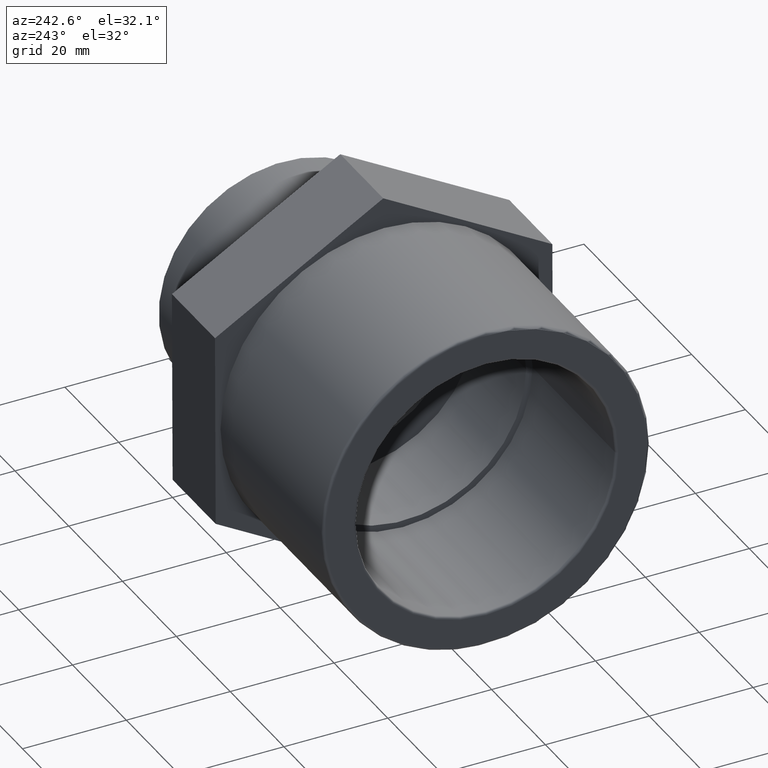
[diagram: clean part render]
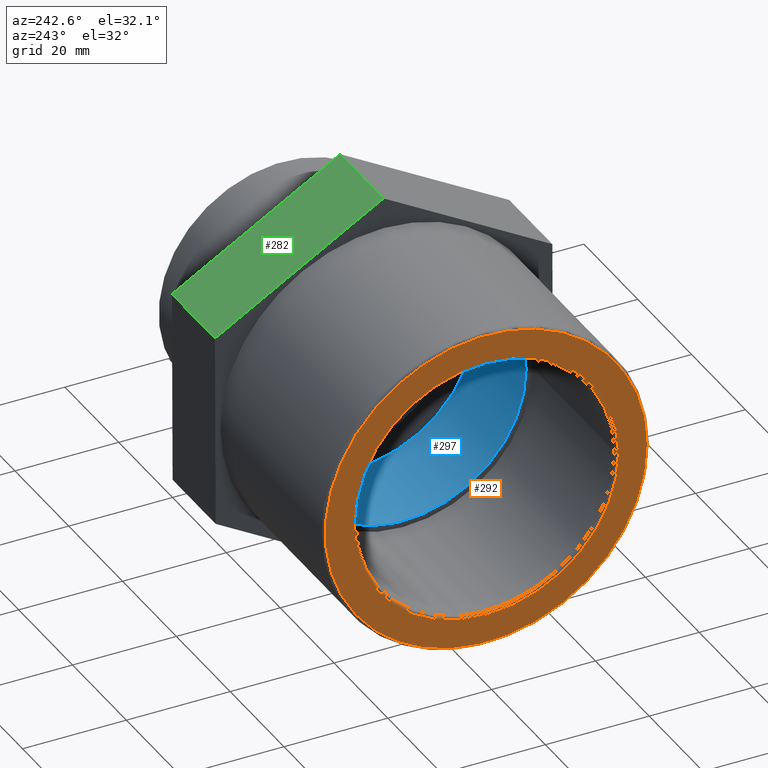
[diagram: same view with three faces highlighted in distinct colors, each labeled with its STEP entity id]
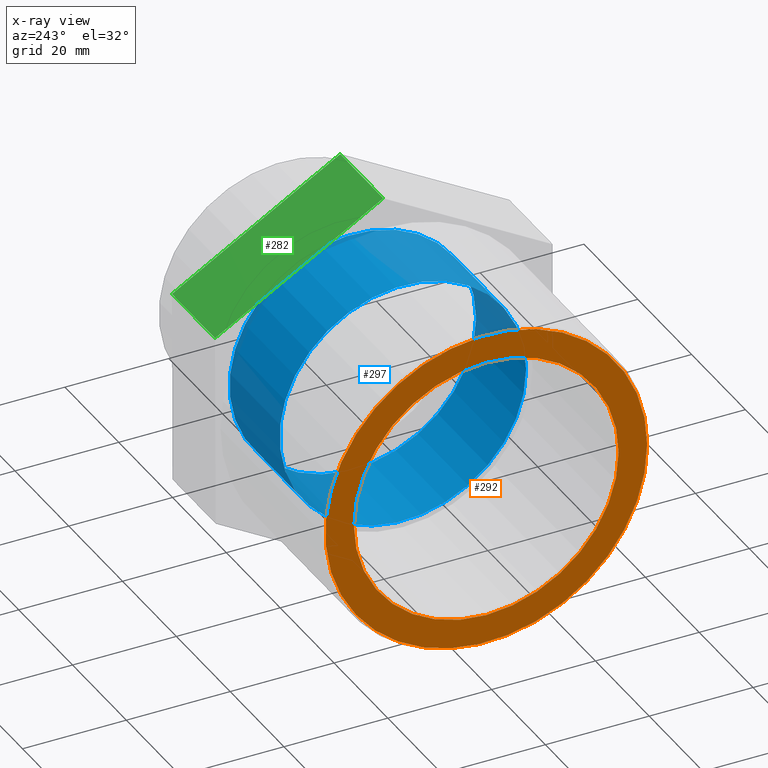
[diagram: x-ray of the same camera — body ghosted, the three highlighted faces saturated]
A machine part, auxiliary view with three faces highlighted in distinct colors.
The next image is the same camera in x-ray (body ghosted, the three faces saturated) — at least one of them is partly hidden behind the body in this view.
Their STEP definitions:

[orange] entity #292 — the highlighted planar face has unit normal (-1, -0, 0).
#26=FACE_BOUND('',#93,.T.);
#41=CIRCLE('',#321,25.5);
#43=CIRCLE('',#324,31.);
#65=FACE_OUTER_BOUND('',#92,.T.);
#92=EDGE_LOOP('',(#240));
#93=EDGE_LOOP('',(#241));
#164=VERTEX_POINT('',#483);
#166=VERTEX_POINT('',#488);
#196=EDGE_CURVE('',#164,#164,#41,.T.);
#198=EDGE_CURVE('',#166,#166,#43,.T.);
#240=ORIENTED_EDGE('',*,*,#198,.F.);
#241=ORIENTED_EDGE('',*,*,#196,.F.);
#275=PLANE('',#323);
#292=ADVANCED_FACE('',(#65,#26),#275,.T.);
#321=AXIS2_PLACEMENT_3D('',#484,#394,#395);
#323=AXIS2_PLACEMENT_3D('',#487,#398,#399);
#324=AXIS2_PLACEMENT_3D('',#489,#400,#401);
#394=DIRECTION('center_axis',(-1.,-6.73555739531044E-16,0.));
#395=DIRECTION('ref_axis',(-6.73555739531044E-16,1.,6.12323399573677E-17));
#398=DIRECTION('center_axis',(-1.,-6.73555739531044E-16,0.));
#399=DIRECTION('ref_axis',(0.,0.,1.));
#400=DIRECTION('center_axis',(1.,6.73555739531044E-16,0.));
#401=DIRECTION('ref_axis',(-6.73555739531044E-16,1.,6.12323399573677E-17));
#483=CARTESIAN_POINT('',(-38.,-25.5,1.56142466891287E-15));
#484=CARTESIAN_POINT('Origin',(-38.,-1.86146313470398E-14,0.));
#487=CARTESIAN_POINT('Origin',(-38.,-25.,0.));
#488=CARTESIAN_POINT('',(-38.,-31.,-5.69460761603519E-15));
#489=CARTESIAN_POINT('Origin',(-38.,-1.86146313470398E-14,0.));

[blue] entity #297 — the highlighted cylindrical surface (bore or boss wall) has radius 23.75 mm, axis along (-1, -0, 0).
#19=CYLINDRICAL_SURFACE('',#333,23.75);
#31=FACE_BOUND('',#103,.T.);
#47=CIRCLE('',#332,23.75);
#48=CIRCLE('',#334,23.75);
#70=FACE_OUTER_BOUND('',#102,.T.);
#102=EDGE_LOOP('',(#250));
#103=EDGE_LOOP('',(#251));
#170=VERTEX_POINT('',#500);
#171=VERTEX_POINT('',#503);
#202=EDGE_CURVE('',#170,#170,#47,.T.);
#203=EDGE_CURVE('',#171,#171,#48,.T.);
#250=ORIENTED_EDGE('',*,*,#203,.F.);
#251=ORIENTED_EDGE('',*,*,#202,.T.);
#297=ADVANCED_FACE('',(#70,#31),#19,.F.);
#332=AXIS2_PLACEMENT_3D('',#501,#416,#417);
#333=AXIS2_PLACEMENT_3D('',#502,#418,#419);
#334=AXIS2_PLACEMENT_3D('',#504,#420,#421);
#416=DIRECTION('center_axis',(-1.,-6.73555739531044E-16,0.));
#417=DIRECTION('ref_axis',(0.,0.,1.));
#418=DIRECTION('center_axis',(-1.,-6.73555739531044E-16,0.));
#419=DIRECTION('ref_axis',(7.105427357601E-16,-1.,0.));
#420=DIRECTION('center_axis',(-1.,-6.73555739531044E-16,0.));
#421=DIRECTION('ref_axis',(0.,0.,1.));
#500=CARTESIAN_POINT('',(-7.,-23.75,0.));
#501=CARTESIAN_POINT('Origin',(-7.00000000000002,2.26559657842259E-15,0.));
#502=CARTESIAN_POINT('Origin',(2.29999999999999,8.52966495606131E-15,0.));
#503=CARTESIAN_POINT('',(11.6,-23.75,0.));
#504=CARTESIAN_POINT('Origin',(11.6,1.47937333337E-14,0.));

[green] entity #282 — the highlighted planar face has unit normal (-0, 0.5031, 0.8642).
#55=FACE_OUTER_BOUND('',#76,.T.);
#76=EDGE_LOOP('',(#212,#213,#214,#215));
#115=LINE('',#442,#133);
#117=LINE('',#446,#135);
#118=LINE('',#448,#136);
#119=LINE('',#449,#137);
#133=VECTOR('',#349,16.);
#135=VECTOR('',#353,37.5277674973257);
#136=VECTOR('',#354,16.);
#137=VECTOR('',#355,37.5277674973257);
#150=VERTEX_POINT('',#439);
#151=VERTEX_POINT('',#441);
#152=VERTEX_POINT('',#445);
#153=VERTEX_POINT('',#447);
#177=EDGE_CURVE('',#151,#150,#115,.T.);
#179=EDGE_CURVE('',#150,#152,#117,.T.);
#180=EDGE_CURVE('',#153,#152,#118,.T.);
#181=EDGE_CURVE('',#153,#151,#119,.T.);
#212=ORIENTED_EDGE('',*,*,#179,.T.);
#213=ORIENTED_EDGE('',*,*,#180,.F.);
#214=ORIENTED_EDGE('',*,*,#181,.T.);
#215=ORIENTED_EDGE('',*,*,#177,.T.);
#270=PLANE('',#305);
#282=ADVANCED_FACE('',(#55),#270,.T.);
#305=AXIS2_PLACEMENT_3D('',#444,#351,#352);
#349=DIRECTION('',(1.,7.40148683083422E-16,0.));
#351=DIRECTION('center_axis',(-3.72391827277445E-16,0.503131108368766,0.864210094705921));
#352=DIRECTION('ref_axis',(5.8209366944984E-16,-0.864210094705921,0.503131108368766));
#353=DIRECTION('',(-5.8209366944984E-16,0.864210094705921,-0.503131108368766));
#354=DIRECTION('',(1.,7.40148683083422E-16,0.));
#355=DIRECTION('',(5.8209366944984E-16,-0.864210094705921,0.503131108368766));
#439=CARTESIAN_POINT('',(16.,0.135823270502121,37.5275217057099));
#441=CARTESIAN_POINT('',(-1.78550529374111E-14,0.13582327050211,37.5275217057099));
#442=CARTESIAN_POINT('',(-1.78550529374111E-14,0.13582327050211,37.5275217057099));
#444=CARTESIAN_POINT('Origin',(-3.96997288261898E-14,32.5676987734677,18.646134450175));
#445=CARTESIAN_POINT('',(16.,32.5676987734677,18.646134450175));
#446=CARTESIAN_POINT('',(16.,24.4597298977263,23.3664812640588));
#447=CARTESIAN_POINT('',(-3.96997288261898E-14,32.5676987734677,18.646134450175));
#448=CARTESIAN_POINT('',(-3.96997288261898E-14,32.5676987734677,18.646134450175));
#449=CARTESIAN_POINT('',(-3.96997288261898E-14,32.5676987734677,18.646134450175));